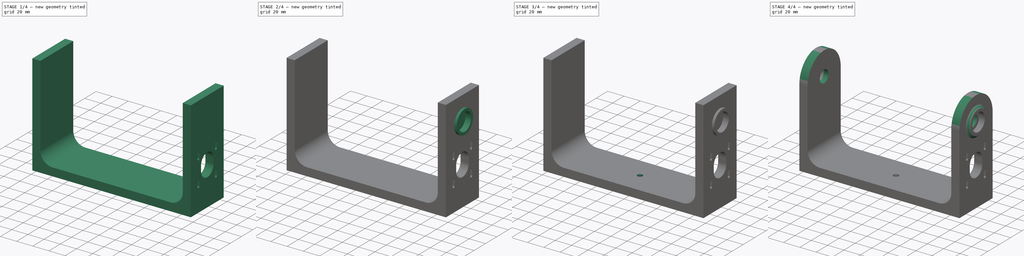
[diagram: build sequence overview — one tinted view per stage of 4, left to right]
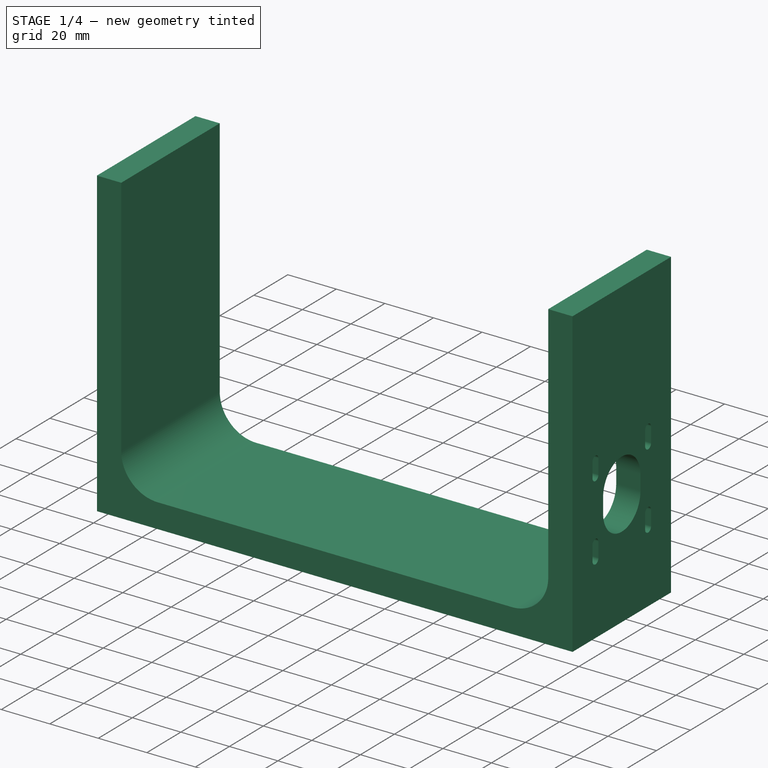
[diagram: stage 1 of 4 — iso view after this stage's code; geometry added in this stage tinted green]
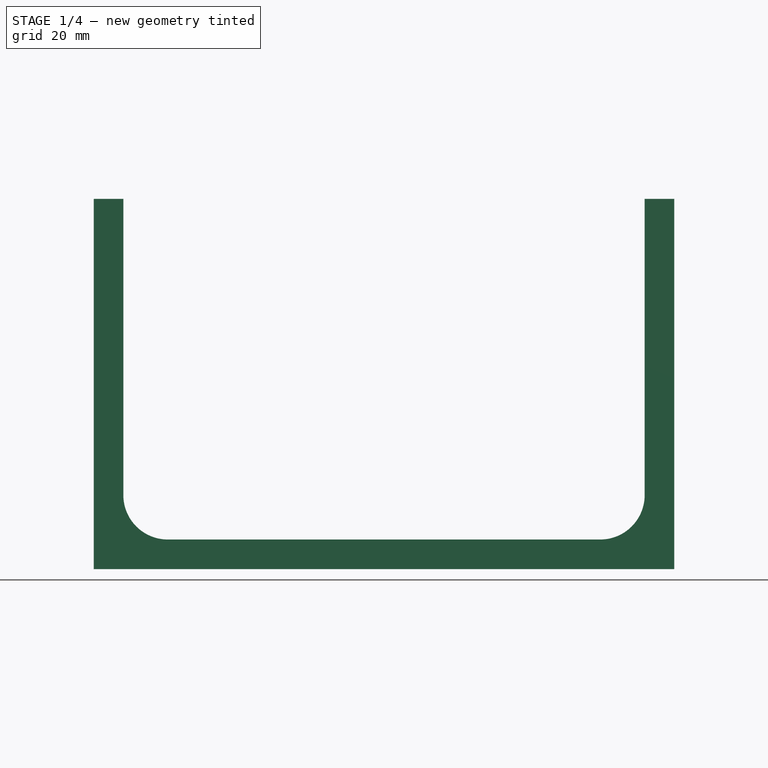
[diagram: stage 1 of 4 — front view after this stage's code; geometry added in this stage tinted green]
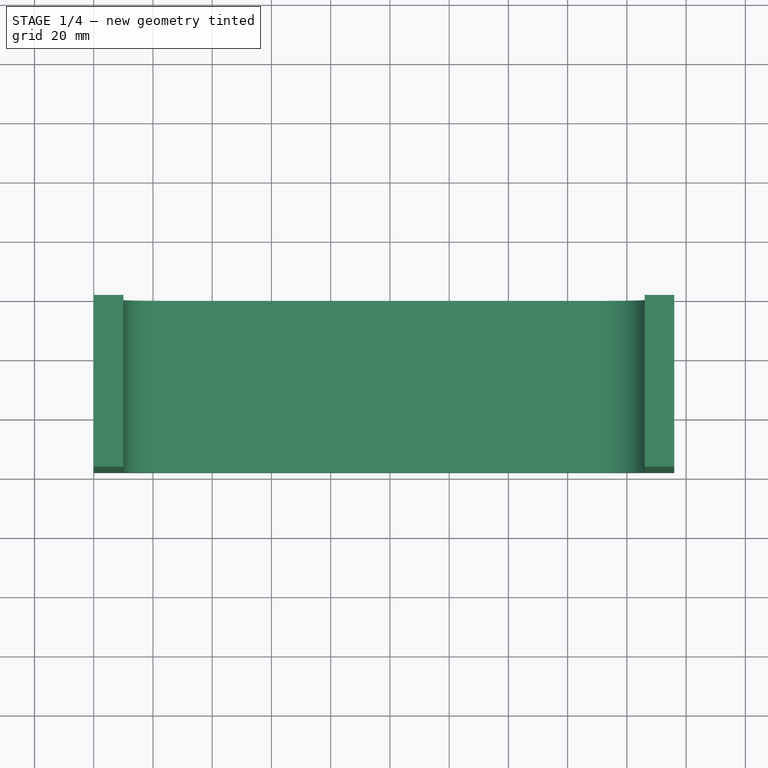
[diagram: stage 1 of 4 — top view after this stage's code; geometry added in this stage tinted green]
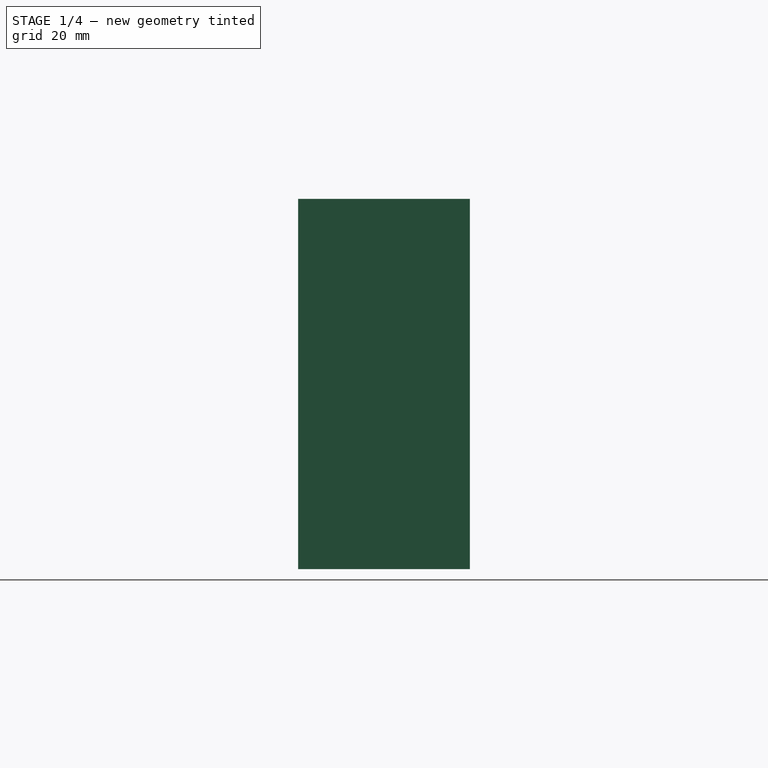
[diagram: stage 1 of 4 — right view after this stage's code; geometry added in this stage tinted green]
FCSTD DOCUMENT  (FreeCAD 0.21R33771 (Git))
Label: head_outer_bracket
License: All rights reserved
LicenseURL: http://en.wikipedia.org/wiki/All_rights_reserved
objects: Sketcher::SketchObject×8, PartDesign::Pocket×5, PartDesign::Pad×3, PartDesign::Plane×1, PartDesign::Chamfer×1, PartDesign::Body×1
note: 28 computed .brp shape members not serialized (recipe doc carries the construction recipe); baked Part::Feature solids carry a one-line shape summary decoded from their .brp

FEATURE [Sketcher::SketchObject] Sketch  label="sketch_base"
  FullyConstrained = true
  MapMode = 5
  Placement = pos=(0,0,0) rot=(1,0,0;1.5708rad)
  Support = -> [XZ_Plane]
  expr: Constraints[26] = .Constraints.arc_radius
  sketch-geometry (10):
    g0: LineSegment StartX=0 StartY=125 StartZ=0 EndX=0 EndY=0 EndZ=0
    g1: LineSegment StartX=0 StartY=0 StartZ=0 EndX=196 EndY=0 EndZ=0
    g2: LineSegment StartX=196 StartY=0 StartZ=0 EndX=196 EndY=125 EndZ=0
    g3: LineSegment StartX=196 StartY=125 StartZ=0 EndX=186 EndY=125 EndZ=0
    g4: LineSegment StartX=186 StartY=125 StartZ=0 EndX=186 EndY=25 EndZ=0
    g5: LineSegment StartX=171 StartY=10 StartZ=0 EndX=25 EndY=10 EndZ=0
    g6: LineSegment StartX=10 StartY=25 StartZ=0 EndX=10 EndY=125 EndZ=0
    g7: LineSegment StartX=10 StartY=125 StartZ=0 EndX=0 EndY=125 EndZ=0
    g8: ArcOfCircle CenterX=25 CenterY=25 CenterZ=0 NormalX=0 NormalY=0 NormalZ=1 AngleXU=0 Radius=15 StartAngle=3.14159 EndAngle=4.71239
    g9: ArcOfCircle CenterX=171 CenterY=25 CenterZ=0 NormalX=0 NormalY=0 NormalZ=1 AngleXU=0 Radius=15 StartAngle=4.71239 EndAngle=6.28319
  constraints (29):
    c: PointOnObject(g0,g-2)
    c: Coincident(g0,g-1)
    c: Coincident(g0,g1)
    c: PointOnObject(g1,g-1)
    c: Coincident(g1,g2)
    c: Vertical(g2)
    c: Coincident(g2,g3)
    c: Horizontal(g3)
    c: Coincident(g3,g4)
    c: Vertical(g4)
    c: Horizontal(g5)
    c: Vertical(g6)
    c: Coincident(g6,g7)
    c: Coincident(g7,g0)
    c: Horizontal(g7)
    c: Equal(g7,g3)
    c: DistanceX(g7,g7) = 10
    c: DistanceX(g1,g1) = 196  'outer_width'
    c: DistanceY(g0,g0) = 125  'height'
    c: Equal(g0,g2)
    c: Tangent(g6,g8) = 1.5708
    c: Tangent(g5,g8) = 1.5708
    c: DistanceY(g0,g5) = 10
    c: Tangent(g4,g9) = 1.5708
    c: Tangent(g5,g9) = 1.5708
    c: DistanceY(g5,g8) = 15  'arc_radius'
    c: DistanceY(g5,g9) = 15
    c: DistanceX(g3,g3) = 10
    c: DistanceX(g6,g3) = 176
FEATURE [PartDesign::Pad] Pad  label="pad_base"
  Direction = (0,-1,-2e-16)
  Length = 58
  Length2 = 10
  Placement = pos=(0,0,0) rot=(1,0,0;1.5708rad)
  Profile = -> Sketch
  ReferenceAxis = -> Sketch [N_Axis]
  Refine = true
  Type = 0
FEATURE [PartDesign::Plane] DatumPlane  label="plan_outer_right"
  AttachmentOffset = pos=(0,0,196) rot=(0,0,1;0rad)
  Length = 105.316
  MapMode = 5
  Placement = pos=(196,-4.35e-14,4.35e-14) rot=(0.57735,0.57735,0.57735;2.0944rad)
  ResizeMode = 0
  Support = -> [YZ_Plane]
  Width = 172.316
  expr: .AttachmentOffset.Base.z = Sketch.Constraints.outer_width
FEATURE [Sketcher::SketchObject] Sketch001  label="sketch_motor"
  FullyConstrained = true
  MapMode = 5
  Placement = pos=(196,-4.35e-14,4.35e-14) rot=(0.57735,0.57735,0.57735;2.0944rad)
  Support = -> [DatumPlane]
  expr: Constraints[100] = .Constraints.motor_margin
  expr: Constraints[101] = .Constraints.motor_margin
  expr: Constraints[130] = .Constraints.motor_margin
  expr: Constraints[132] = .Constraints.motor_margin
  expr: Constraints[162] = .Constraints.motor_margin
  expr: Constraints[163] = .Constraints.motor_margin
  expr: Constraints[176] = <<pad_base>>.Length / 2
  expr: Constraints[177] = <<sketch_base>>.Constraints.height
  expr: Constraints[18] = .Constraints.motor_margin
  expr: Constraints[65] = .Constraints.motor_margin
  expr: Constraints[66] = .Constraints.motor_margin
  sketch-geometry (66):
    g0: LineSegment StartX=-29 StartY=96 StartZ=0 EndX=-29 EndY=125 EndZ=0
    g1: LineSegment StartX=-29 StartY=96 StartZ=0 EndX=0 EndY=96 EndZ=0
    g2: LineSegment StartX=-40 StartY=47.7 StartZ=0 EndX=-18 EndY=47.7 EndZ=0
    g3: LineSegment StartX=-40 StartY=47.7 StartZ=0 EndX=-40 EndY=44.7 EndZ=0
    g4: LineSegment StartX=-18 StartY=47.7 StartZ=0 EndX=-18 EndY=44.7 EndZ=0
    g5: LineSegment StartX=-40 StartY=44.7 StartZ=0 EndX=-18 EndY=44.7 EndZ=0
    g6: LineSegment StartX=-18 StartY=47.7 StartZ=0 EndX=-18 EndY=50.7 EndZ=0
    g7: LineSegment StartX=-40 StartY=47.7 StartZ=0 EndX=-40 EndY=50.7 EndZ=0
    g8: LineSegment StartX=-40 StartY=50.7 StartZ=0 EndX=-18 EndY=50.7 EndZ=0
    g9: LineSegment StartX=-29 StartY=96 StartZ=0 EndX=-29 EndY=50.7 EndZ=0
    g10: LineSegment StartX=-29 StartY=50.7 StartZ=0 EndX=-29 EndY=47.7 EndZ=0
    g11: LineSegment StartX=-29 StartY=47.7 StartZ=0 EndX=-29 EndY=44.7 EndZ=0
    g12: ArcOfCircle CenterX=-29 CenterY=44.7 CenterZ=0 NormalX=0 NormalY=0 NormalZ=1 AngleXU=0 Radius=11 StartAngle=3.14159 EndAngle=6.28319
    g13: ArcOfCircle CenterX=-29 CenterY=50.7 CenterZ=0 NormalX=0 NormalY=0 NormalZ=1 AngleXU=0 Radius=11 StartAngle=-2.709e-13 EndAngle=3.14159
    g14: LineSegment StartX=-44.5 StartY=63.2 StartZ=0 EndX=-13.5 EndY=63.2 EndZ=0
    g15: LineSegment StartX=-13.5 StartY=63.2 StartZ=0 EndX=-13.5 EndY=32.2 EndZ=0
    g16: LineSegment StartX=-13.5 StartY=32.2 StartZ=0 EndX=-44.5 EndY=32.2 EndZ=0
    g17: LineSegment StartX=-44.5 StartY=32.2 StartZ=0 EndX=-44.5 EndY=63.2 EndZ=0
    g18: GeomPoint X=-29 Y=47.7 Z=0
    g19: LineSegment StartX=-44.5 StartY=60.2 StartZ=0 EndX=-42.75 EndY=60.2 EndZ=0
    g20: LineSegment StartX=-42.75 StartY=60.2 StartZ=0 EndX=-42.75 EndY=63.2 EndZ=0
    g21: LineSegment StartX=-42.75 StartY=63.2 StartZ=0 EndX=-42.75 EndY=66.2 EndZ=0
    g22: LineSegment StartX=-42.75 StartY=66.2 StartZ=0 EndX=-46.25 EndY=66.2 EndZ=0
    g23: LineSegment StartX=-46.25 StartY=66.2 StartZ=0 EndX=-46.25 EndY=63.2 EndZ=0
    g24: LineSegment StartX=-44.5 StartY=63.2 StartZ=0 EndX=-46.25 EndY=63.2 EndZ=0
    g25: LineSegment StartX=-46.25 StartY=63.2 StartZ=0 EndX=-46.25 EndY=60.2 EndZ=0
    g26: LineSegment StartX=-46.25 StartY=60.2 StartZ=0 EndX=-44.5 EndY=60.2 EndZ=0
    g27: LineSegment StartX=-44.5 StartY=63.2 StartZ=0 EndX=-44.5 EndY=66.2 EndZ=0
    g28: ArcOfCircle CenterX=-44.5 CenterY=66.2 CenterZ=0 NormalX=0 NormalY=0 NormalZ=1 AngleXU=0 Radius=1.75 StartAngle=5.6e-15 EndAngle=3.14159
    g29: ArcOfCircle CenterX=-44.5 CenterY=60.2 CenterZ=0 NormalX=0 NormalY=0 NormalZ=1 AngleXU=0 Radius=1.75 StartAngle=3.14159 EndAngle=6.28319
    g30: LineSegment StartX=-13.5 StartY=63.2 StartZ=0 EndX=-13.5 EndY=66.2 EndZ=0
    g31: LineSegment StartX=-13.5 StartY=63.2 StartZ=0 EndX=-11.75 EndY=63.2 EndZ=0
    g32: LineSegment StartX=-13.5 StartY=60.2 StartZ=0 EndX=-11.75 EndY=60.2 EndZ=0
    g33: LineSegment StartX=-11.75 StartY=63.2 StartZ=0 EndX=-11.75 EndY=60.2 EndZ=0
    g34: LineSegment StartX=-11.75 StartY=63.2 StartZ=0 EndX=-11.75 EndY=66.2 EndZ=0
    g35: LineSegment StartX=-11.75 StartY=66.2 StartZ=0 EndX=-13.5 EndY=66.2 EndZ=0
    g36: LineSegment StartX=-13.5 StartY=66.2 StartZ=0 EndX=-15.25 EndY=66.2 EndZ=0
    g37: LineSegment StartX=-15.25 StartY=66.2 StartZ=0 EndX=-15.25 EndY=63.2 EndZ=0
    g38: LineSegment StartX=-15.25 StartY=63.2 StartZ=0 EndX=-15.25 EndY=60.2 EndZ=0
    g39: LineSegment StartX=-15.25 StartY=60.2 StartZ=0 EndX=-13.5 EndY=60.2 EndZ=0
    g40: ArcOfCircle CenterX=-13.5 CenterY=60.2 CenterZ=0 NormalX=0 NormalY=0 NormalZ=1 AngleXU=0 Radius=1.75 StartAngle=3.14159 EndAngle=6.28319
    g41: ArcOfCircle CenterX=-13.5 CenterY=66.2 CenterZ=0 NormalX=0 NormalY=0 NormalZ=1 AngleXU=0 Radius=1.75 StartAngle=0 EndAngle=3.14159
    g42: LineSegment StartX=-44.5 StartY=35.2 StartZ=0 EndX=-46.25 EndY=35.2 EndZ=0
    g43: LineSegment StartX=-46.25 StartY=35.2 StartZ=0 EndX=-46.25 EndY=32.2 EndZ=0
    g44: LineSegment StartX=-46.25 StartY=32.2 StartZ=0 EndX=-44.5 EndY=32.2 EndZ=0
    g45: LineSegment StartX=-44.5 StartY=35.2 StartZ=0 EndX=-42.75 EndY=35.2 EndZ=0
    g46: LineSegment StartX=-42.75 StartY=35.2 StartZ=0 EndX=-42.75 EndY=32.2 EndZ=0
    g47: LineSegment StartX=-42.75 StartY=32.2 StartZ=0 EndX=-42.75 EndY=29.2 EndZ=0
    g48: LineSegment StartX=-44.5 StartY=32.2 StartZ=0 EndX=-44.5 EndY=29.2 EndZ=0
    g49: LineSegment StartX=-44.5 StartY=29.2 StartZ=0 EndX=-42.75 EndY=29.2 EndZ=0
    g50: LineSegment StartX=-44.5 StartY=29.2 StartZ=0 EndX=-46.25 EndY=29.2 EndZ=0
    g51: LineSegment StartX=-46.25 StartY=29.2 StartZ=0 EndX=-46.25 EndY=32.2 EndZ=0
    g52: ArcOfCircle CenterX=-44.5 CenterY=35.2 CenterZ=0 NormalX=0 NormalY=0 NormalZ=1 AngleXU=0 Radius=1.75 StartAngle=3e-16 EndAngle=3.14159
    g53: ArcOfCircle CenterX=-44.5 CenterY=29.2 CenterZ=0 NormalX=0 NormalY=0 NormalZ=1 AngleXU=0 Radius=1.75 StartAngle=3.14159 EndAngle=6.28318
    g54: LineSegment StartX=-13.5 StartY=35.2 StartZ=0 EndX=-11.75 EndY=35.2 EndZ=0
    g55: LineSegment StartX=-11.75 StartY=35.2 StartZ=0 EndX=-11.75 EndY=32.2 EndZ=0
    g56: LineSegment StartX=-13.5 StartY=32.2 StartZ=0 EndX=-11.75 EndY=32.2 EndZ=0
    g57: LineSegment StartX=-11.75 StartY=32.2 StartZ=0 EndX=-11.75 EndY=29.2 EndZ=0
    g58: LineSegment StartX=-11.75 StartY=29.2 StartZ=0 EndX=-13.5 EndY=29.2 EndZ=0
    g59: LineSegment StartX=-13.5 StartY=29.2 StartZ=0 EndX=-13.5 EndY=32.2 EndZ=0
    g60: LineSegment StartX=-15.25 StartY=32.2 StartZ=0 EndX=-15.25 EndY=35.2 EndZ=0
    g61: LineSegment StartX=-15.25 StartY=35.2 StartZ=0 EndX=-13.5 EndY=35.2 EndZ=0
    g62: LineSegment StartX=-13.5 StartY=29.2 StartZ=0 EndX=-15.25 EndY=29.2 EndZ=0
    g63: LineSegment StartX=-15.25 StartY=29.2 StartZ=0 EndX=-15.25 EndY=32.2 EndZ=0
    g64: ArcOfCircle CenterX=-13.5 CenterY=29.2 CenterZ=0 NormalX=0 NormalY=0 NormalZ=1 AngleXU=0 Radius=1.75 StartAngle=3.14159 EndAngle=6.28319
    g65: ArcOfCircle CenterX=-13.5 CenterY=35.2 CenterZ=0 NormalX=0 NormalY=0 NormalZ=1 AngleXU=0 Radius=1.75 StartAngle=-9e-16 EndAngle=3.14159
  constraints (178):
    c: Vertical(g0)
    c: PointOnObject(g1,g-2)
    c: Horizontal(g1)
    c: Horizontal(g2)
    c: Coincident(g3,g2)
    c: Vertical(g3)
    c: Coincident(g4,g2)
    c: Vertical(g4)
    c: Coincident(g5,g3)
    c: Coincident(g5,g4)
    c: Horizontal(g5)
    c: Coincident(g6,g4)
    c: Vertical(g6)
    c: Coincident(g7,g3)
    c: Vertical(g7)
    c: Coincident(g8,g7)
    c: Coincident(g8,g6)
    c: Horizontal(g8)
    c: DistanceY(g4,g4) = 3
    c: DistanceY(g6,g6) = 3  'motor_margin'
    c: PointOnObject(g9,g8)
    c: Vertical(g9)
    c: Coincident(g10,g9)
    c: PointOnObject(g10,g2)
    c: Vertical(g10)
    c: Coincident(g11,g10)
    c: PointOnObject(g11,g5)
    c: DistanceX(g3,g4) = 22
    c: Coincident(g12,g11)
    c: Coincident(g12,g3)
    c: Coincident(g12,g4)
    c: Coincident(g13,g9)
    c: Coincident(g13,g7)
    c: Coincident(g13,g6)
    c: Coincident(g14,g15)
    c: Coincident(g15,g16)
    c: Coincident(g16,g17)
    c: Coincident(g17,g14)
    c: Horizontal(g14)
    c: Horizontal(g16)
    c: Vertical(g15)
    c: Vertical(g17)
    c: Equal(g14,g17)
    c: DistanceY(g17,g17) = 31
    c: Symmetric(g16,g14,g18)
    c: Coincident(g18,g10)
    c: PointOnObject(g19,g17)
    c: Horizontal(g19)
    c: Coincident(g20,g19)
    c: PointOnObject(g20,g14)
    c: Vertical(g20)
    c: Coincident(g21,g20)
    c: Vertical(g21)
    c: Coincident(g22,g21)
    c: Horizontal(g22)
    c: Coincident(g23,g22)
    c: Vertical(g23)
    c: Coincident(g24,g14)
    c: Coincident(g24,g23)
    c: Horizontal(g24)
    c: Coincident(g25,g23)
    c: Vertical(g25)
    c: Coincident(g26,g25)
    c: Coincident(g26,g19)
    c: Horizontal(g26)
    c: DistanceY(g21,g21) = 3
    c: DistanceY(g20,g20) = 3
    c: DistanceX(g22,g22) = 3.5
    c: Coincident(g27,g14)
    c: PointOnObject(g27,g22)
    c: Coincident(g28,g27)
    c: Coincident(g28,g23)
    c: Coincident(g28,g21)
    c: Coincident(g29,g19)
    c: Coincident(g29,g25)
    c: Coincident(g29,g20)
    c: Coincident(g30,g14)
    c: Vertical(g30)
    c: Coincident(g31,g14)
    c: Horizontal(g31)
    c: PointOnObject(g32,g15)
    c: Horizontal(g32)
    c: Coincident(g33,g31)
    c: Coincident(g33,g32)
    c: Vertical(g33)
    c: Coincident(g34,g31)
    c: Coincident(g35,g34)
    c: Coincident(g35,g30)
    c: Coincident(g36,g30)
    c: Horizontal(g36)
    c: Coincident(g37,g36)
    c: PointOnObject(g37,g14)
    c: Vertical(g37)
    c: Coincident(g38,g37)
    c: Vertical(g38)
    c: Coincident(g39,g38)
    c: Coincident(g39,g32)
    c: Horizontal(g39)
    c: Horizontal(g35)
    c: DistanceX(g36,g34) = 3.5
    c: DistanceY(g34,g34) = 3
    c: DistanceY(g33,g33) = 3
    c: Coincident(g40,g32)
    c: Coincident(g40,g38)
    c: Coincident(g40,g32)
    c: Coincident(g41,g30)
    c: Coincident(g41,g36)
    c: Coincident(g41,g34)
    c: PointOnObject(g42,g17)
    c: Horizontal(g42)
    c: Vertical(g43)
    c: Coincident(g44,g43)
    c: Coincident(g44,g16)
    c: Horizontal(g44)
    c: Coincident(g45,g42)
    c: Horizontal(g45)
    c: Coincident(g46,g45)
    c: PointOnObject(g46,g16)
    c: Vertical(g46)
    c: Coincident(g47,g46)
    c: Vertical(g47)
    c: Coincident(g48,g16)
    c: Vertical(g48)
    c: Coincident(g49,g48)
    c: Coincident(g49,g47)
    c: Coincident(g50,g48)
    c: Horizontal(g50)
    c: Coincident(g51,g50)
    c: Coincident(g51,g43)
    c: Vertical(g51)
    c: DistanceY(g46,g46) = 3
    c: Coincident(g43,g42)
    c: DistanceY(g47,g47) = 3
    c: Coincident(g52,g42)
    c: Coincident(g52,g42)
    c: Coincident(g52,g45)
    c: Coincident(g53,g48)
    c: Coincident(g53,g50)
    c: Coincident(g53,g47)
    c: DistanceX(g53,g53) = 3.5
    c: PointOnObject(g54,g15)
    c: Horizontal(g54)
    c: Coincident(g55,g54)
    c: Vertical(g55)
    c: Coincident(g56,g15)
    c: Coincident(g56,g55)
    c: Horizontal(g56)
    c: Coincident(g57,g55)
    c: Vertical(g57)
    c: Coincident(g58,g57)
    c: Horizontal(g58)
    c: Coincident(g59,g15)
    c: Vertical(g59)
    c: PointOnObject(g60,g16)
    c: Vertical(g60)
    c: Coincident(g61,g60)
    c: Coincident(g61,g54)
    c: Coincident(g62,g58)
    c: Horizontal(g62)
    c: Coincident(g63,g62)
    c: Coincident(g63,g60)
    c: Horizontal(g61)
    c: DistanceY(g55,g55) = 3
    c: DistanceY(g57,g57) = 3
    c: Coincident(g59,g58)
    c: DistanceX(g62,g57) = 3.5
    c: Coincident(g64,g58)
    c: Coincident(g64,g62)
    c: Coincident(g64,g57)
    c: Coincident(g65,g54)
    c: Coincident(g65,g60)
    c: Coincident(g65,g54)
    c: Equal(g0,g1)
    c: DistanceY(g10,g0) = 48.3
    c: Coincident(g0,g9)
    c: Coincident(g1,g0)
    c: DistanceX(g1,g1) = 29
    c: DistanceY(g-1,g0) = 125
FEATURE [PartDesign::Pocket] Pocket  label="pocket_motor"
  BaseFeature = -> Pad
  Direction = (-1,1e-16,-1e-16)
  Length = 5
  Length2 = 5
  Placement = pos=(0,0,0) rot=(1,0,0;1.5708rad)
  Profile = -> Sketch001
  ReferenceAxis = -> Sketch001 [N_Axis]
  Refine = true
  Type = 2
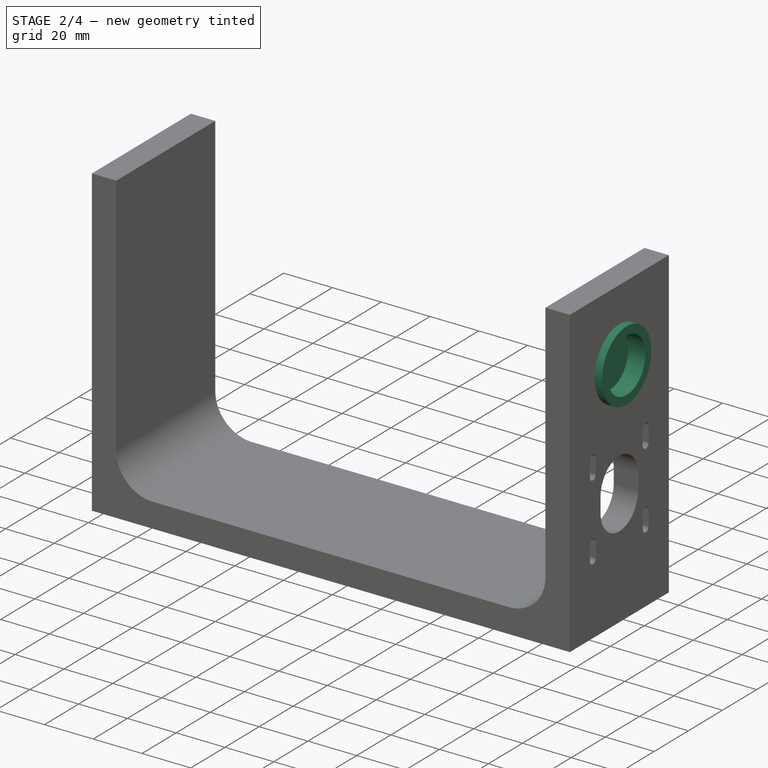
[diagram: stage 2 of 4 — iso view after this stage's code; geometry added in this stage tinted green]
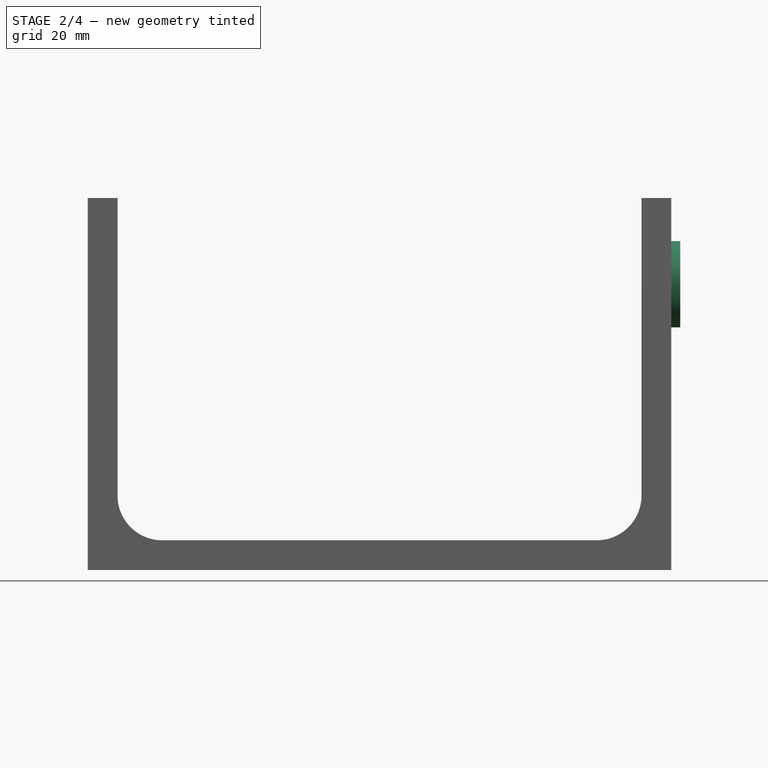
[diagram: stage 2 of 4 — front view after this stage's code; geometry added in this stage tinted green]
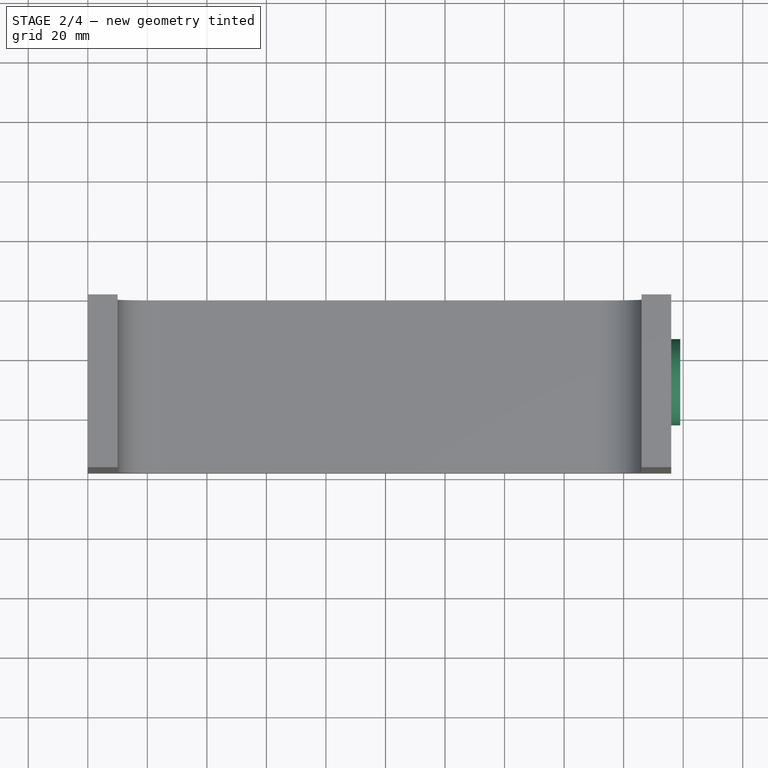
[diagram: stage 2 of 4 — top view after this stage's code; geometry added in this stage tinted green]
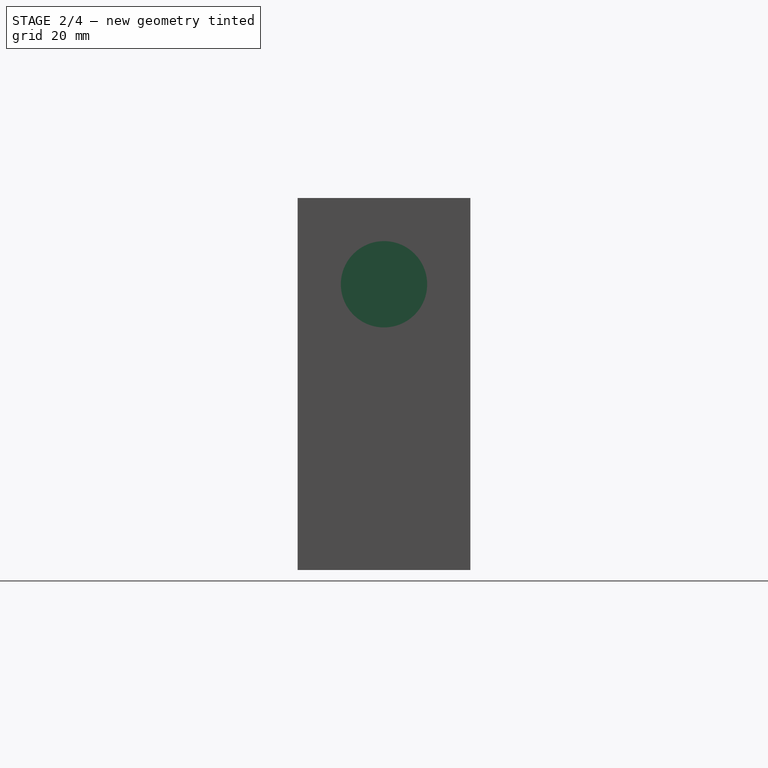
[diagram: stage 2 of 4 — right view after this stage's code; geometry added in this stage tinted green]
FEATURE [Sketcher::SketchObject] Sketch002  label="sketch_bearing_right_inner"
  FullyConstrained = true
  MapMode = 5
  Placement = pos=(196,-4.35e-14,4.35e-14) rot=(0.57735,0.57735,0.57735;2.0944rad)
  Support = -> [DatumPlane]
  expr: Constraints[11] = <<sketch_base>>.Constraints.height
  expr: Constraints[12] = <<pad_base>>.Length / 2
  sketch-geometry (5):
    g0: GeomPoint X=-29 Y=125 Z=0
    g1: LineSegment StartX=-29 StartY=125 StartZ=0 EndX=-29 EndY=96 EndZ=0
    g2: LineSegment StartX=-29 StartY=96 StartZ=0 EndX=0 EndY=96 EndZ=0
    g3: Circle CenterX=-29 CenterY=96 CenterZ=0 NormalX=0 NormalY=0 NormalZ=1 AngleXU=0 Radius=11
    g4: LineSegment StartX=-29 StartY=125 StartZ=0 EndX=0 EndY=125 EndZ=0
  constraints (13):
    c: Coincident(g1,g0)
    c: Vertical(g1)
    c: Coincident(g2,g1)
    c: PointOnObject(g2,g-2)
    c: Horizontal(g2)
    c: Equal(g1,g2)
    c: Diameter(g3) = 22
    c: Coincident(g3,g1)
    c: Coincident(g4,g0)
    c: PointOnObject(g4,g-2)
    c: Horizontal(g4)
    c: DistanceY(g-1,g4) = 125
    c: DistanceX(g2,g2) = 29
FEATURE [PartDesign::Pocket] Pocket001  label="pocket_bearing_right_inner"
  BaseFeature = -> Pocket
  Direction = (-1,1e-16,-1e-16)
  Length = 4
  Length2 = 5
  Placement = pos=(0,0,0) rot=(1,0,0;1.5708rad)
  Profile = -> Sketch002
  ReferenceAxis = -> Sketch002 [N_Axis]
  Refine = true
  Type = 0
FEATURE [Sketcher::SketchObject] Sketch003  label="sketch_bearing_right_outer"
  FullyConstrained = true
  MapMode = 5
  Placement = pos=(196,-4.35e-14,4.35e-14) rot=(0.57735,0.57735,0.57735;2.0944rad)
  Support = -> [DatumPlane]
  expr: Constraints[13] = <<pad_base>>.Length / 2
  expr: Constraints[14] = <<sketch_base>>.Constraints.height
  sketch-geometry (6):
    g0: GeomPoint X=-29 Y=125 Z=0
    g1: LineSegment StartX=-29 StartY=125 StartZ=0 EndX=-29 EndY=96 EndZ=0
    g2: LineSegment StartX=-29 StartY=96 StartZ=0 EndX=0 EndY=96 EndZ=0
    g3: Circle CenterX=-29 CenterY=96 CenterZ=0 NormalX=0 NormalY=0 NormalZ=1 AngleXU=0 Radius=11
    g4: Circle CenterX=-29 CenterY=96 CenterZ=0 NormalX=0 NormalY=0 NormalZ=1 AngleXU=0 Radius=14.5
    g5: LineSegment StartX=-29 StartY=125 StartZ=0 EndX=0 EndY=125 EndZ=0
  constraints (15):
    c: Coincident(g1,g0)
    c: Vertical(g1)
    c: Coincident(g2,g1)
    c: PointOnObject(g2,g-2)
    c: Horizontal(g2)
    c: Equal(g1,g2)
    c: Coincident(g3,g1)
    c: Diameter(g3) = 22
    c: Coincident(g4,g3)
    c: Diameter(g4) = 29
    c: Coincident(g5,g0)
    c: PointOnObject(g5,g-2)
    c: Horizontal(g5)
    c: DistanceX(g2,g2) = 29
    c: DistanceY(g-1,g5) = 125
FEATURE [PartDesign::Pad] Pad001  label="pad_bearing_right_outer"
  BaseFeature = -> Pocket001
  Direction = (1,-1e-16,1e-16)
  Length = 3
  Length2 = 10
  Placement = pos=(0,0,0) rot=(1,0,0;1.5708rad)
  Profile = -> Sketch003
  ReferenceAxis = -> Sketch003 [N_Axis]
  Refine = true
  Type = 0
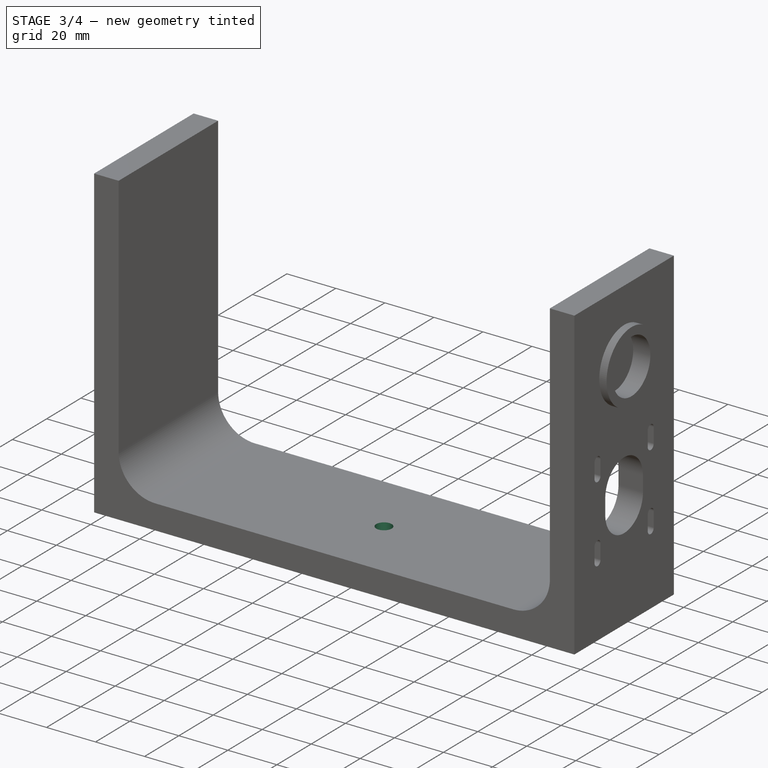
[diagram: stage 3 of 4 — iso view after this stage's code; geometry added in this stage tinted green]
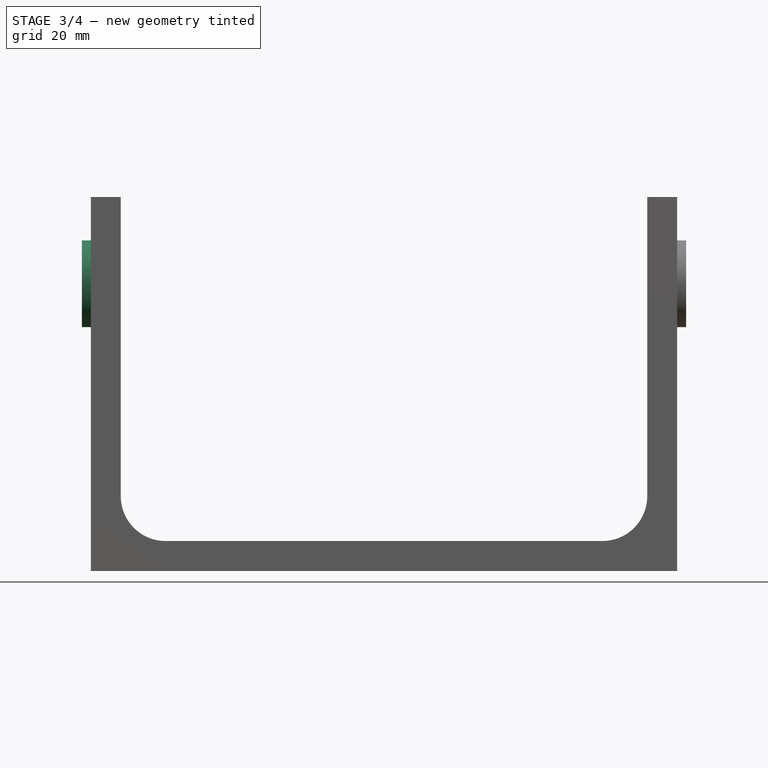
[diagram: stage 3 of 4 — front view after this stage's code; geometry added in this stage tinted green]
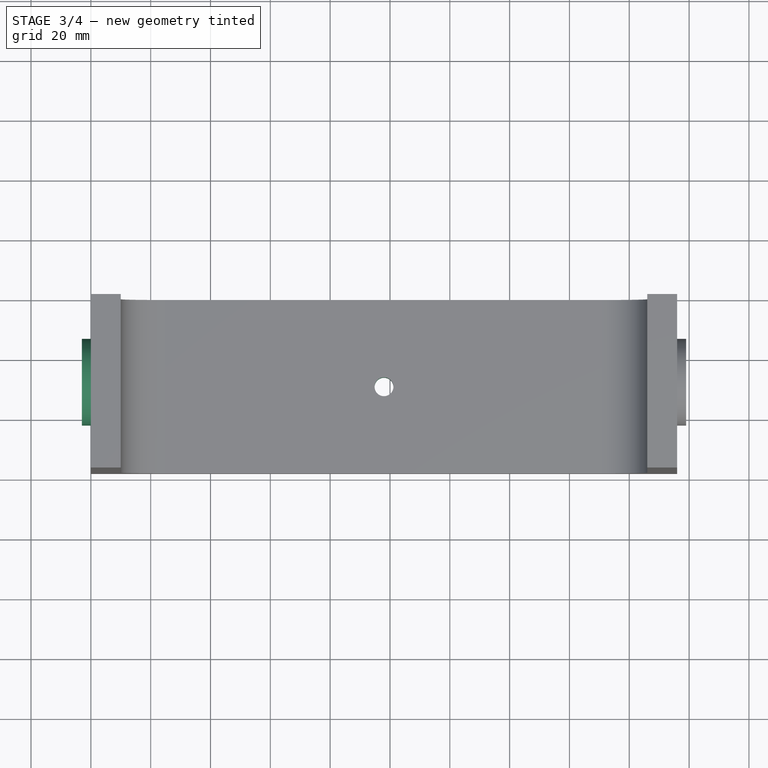
[diagram: stage 3 of 4 — top view after this stage's code; geometry added in this stage tinted green]
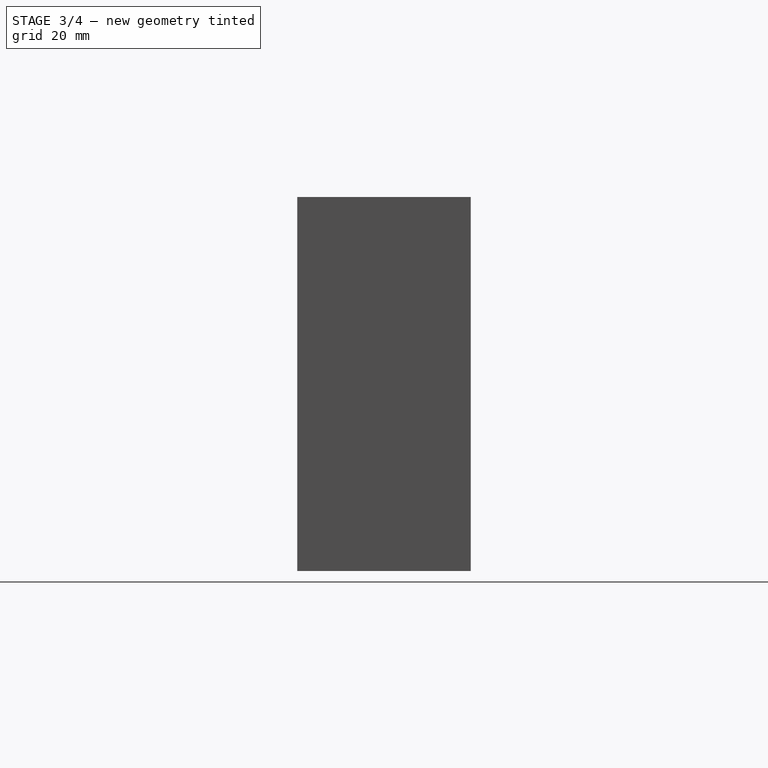
[diagram: stage 3 of 4 — right view after this stage's code; geometry added in this stage tinted green]
FEATURE [Sketcher::SketchObject] Sketch004  label="sketch_bearing_left_inner"
  FullyConstrained = true
  MapMode = 5
  Placement = pos=(0,0,0) rot=(0.57735,0.57735,0.57735;2.0944rad)
  Support = -> [YZ_Plane]
  expr: Constraints[13] = <<pad_base>>.Length / 2
  expr: Constraints[14] = <<sketch_base>>.Constraints.height
  sketch-geometry (6):
    g0: Circle CenterX=-29 CenterY=96 CenterZ=0 NormalX=0 NormalY=0 NormalZ=1 AngleXU=0 Radius=11
    g1: GeomPoint X=-29 Y=125 Z=0
    g2: LineSegment StartX=-29 StartY=125 StartZ=0 EndX=-29 EndY=96 EndZ=0
    g3: LineSegment StartX=-29 StartY=96 StartZ=0 EndX=0 EndY=96 EndZ=0
    g4: LineSegment StartX=-29 StartY=125 StartZ=0 EndX=0 EndY=125 EndZ=0
    g5: LineSegment StartX=0 StartY=125 StartZ=0 EndX=0 EndY=96 EndZ=0
  constraints (15):
    c: Diameter(g0) = 22
    c: Coincident(g2,g1)
    c: Vertical(g2)
    c: Coincident(g3,g2)
    c: PointOnObject(g3,g-2)
    c: Horizontal(g3)
    c: Equal(g2,g3)
    c: Coincident(g2,g0)
    c: Coincident(g4,g1)
    c: PointOnObject(g4,g-2)
    c: Horizontal(g4)
    c: Coincident(g5,g4)
    c: Coincident(g5,g3)
    c: DistanceX(g3,g3) = 29
    c: DistanceY(g-1,g4) = 125
FEATURE [PartDesign::Pocket] Pocket002  label="pocket_bearing_left_inner"
  BaseFeature = -> Pad001
  Direction = (-1,2e-16,-3e-16)
  Length = 4
  Length2 = 5
  Placement = pos=(0,0,0) rot=(1,0,0;1.5708rad)
  Profile = -> Sketch004
  ReferenceAxis = -> Sketch004 [N_Axis]
  Refine = true
  Reversed = true
  Type = 0
FEATURE [Sketcher::SketchObject] Sketch005  label="sketch_bearing_left_outer"
  FullyConstrained = true
  MapMode = 5
  Placement = pos=(0,0,0) rot=(0.57735,0.57735,0.57735;2.0944rad)
  Support = -> [YZ_Plane]
  expr: Constraints[14] = <<pad_base>>.Length / 2
  expr: Constraints[15] = <<sketch_base>>.Constraints.height
  sketch-geometry (7):
    g0: GeomPoint X=-29 Y=96 Z=0
    g1: Circle CenterX=-29 CenterY=96 CenterZ=0 NormalX=0 NormalY=0 NormalZ=1 AngleXU=0 Radius=11
    g2: Circle CenterX=-29 CenterY=96 CenterZ=0 NormalX=0 NormalY=0 NormalZ=1 AngleXU=0 Radius=14.5
    g3: GeomPoint X=-29 Y=125 Z=0
    g4: LineSegment StartX=-29 StartY=125 StartZ=0 EndX=-29 EndY=96 EndZ=0
    g5: LineSegment StartX=-29 StartY=96 StartZ=0 EndX=0 EndY=96 EndZ=0
    g6: LineSegment StartX=-29 StartY=125 StartZ=0 EndX=0 EndY=125 EndZ=0
  constraints (16):
    c: Coincident(g1,g0)
    c: Diameter(g1) = 22
    c: Coincident(g2,g1)
    c: Diameter(g2) = 29
    c: Coincident(g4,g3)
    c: Vertical(g4)
    c: Coincident(g5,g4)
    c: PointOnObject(g5,g-2)
    c: Horizontal(g5)
    c: Equal(g4,g5)
    c: Coincident(g1,g4)
    c: Coincident(g6,g3)
    c: PointOnObject(g6,g-2)
    c: Horizontal(g6)
    c: DistanceX(g5,g5) = 29
    c: DistanceY(g-1,g6) = 125
FEATURE [PartDesign::Pad] Pad002  label="pad_bearing_left_outer"
  BaseFeature = -> Pocket002
  Direction = (1,-2e-16,3e-16)
  Length = 3
  Length2 = 10
  Placement = pos=(0,0,0) rot=(1,0,0;1.5708rad)
  Profile = -> Sketch005
  ReferenceAxis = -> Sketch005 [N_Axis]
  Refine = true
  Reversed = true
  Type = 0
FEATURE [Sketcher::SketchObject] Sketch006  label="sketch_platform_hole"
  FullyConstrained = true
  MapMode = 5
  Support = -> [XY_Plane]
  expr: Constraints[1] = <<sketch_base>>.Constraints.outer_width / 2
  expr: Constraints[2] = <<pad_base>>.Length / 2
  sketch-geometry (2):
    g0: GeomPoint X=98 Y=-29 Z=0
    g1: Circle CenterX=98 CenterY=-29 CenterZ=0 NormalX=0 NormalY=0 NormalZ=1 AngleXU=0 Radius=3.15
  constraints (4):
    c: Coincident(g1,g0)
    c: DistanceX(g-1,g1) = 98
    c: DistanceY(g1,g-1) = 29
    c: Diameter(g1) = 6.3
FEATURE [PartDesign::Pocket] Pocket003  label="pocket_platform_hole"
  BaseFeature = -> Pad002
  Direction = (0,0,-1)
  Length = 5
  Length2 = 5
  Placement = pos=(0,0,0) rot=(1,0,0;1.5708rad)
  Profile = -> Sketch006
  ReferenceAxis = -> Sketch006 [N_Axis]
  Refine = true
  Reversed = true
  Type = 2
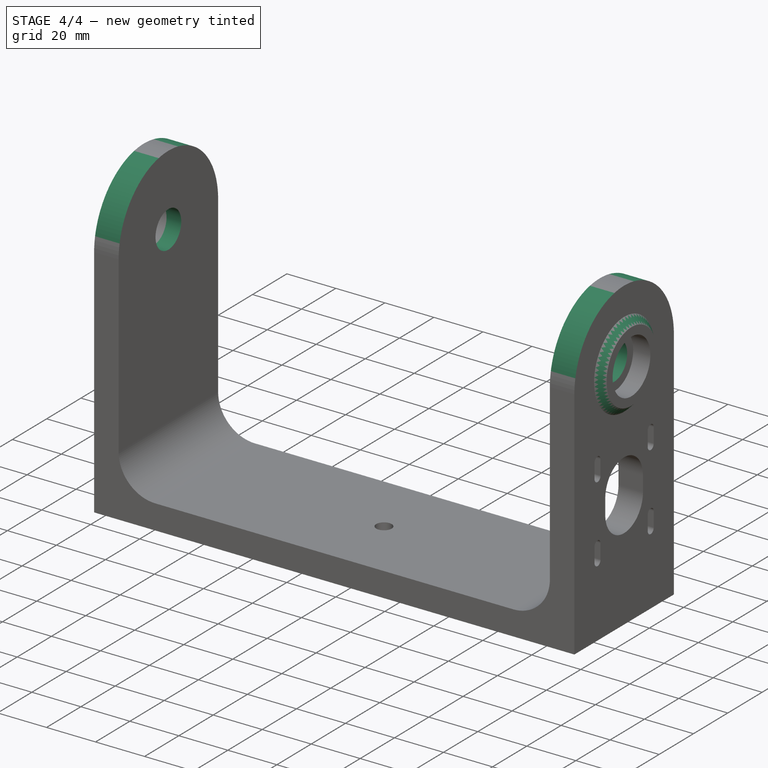
[diagram: stage 4 of 4 — iso view after this stage's code; geometry added in this stage tinted green]
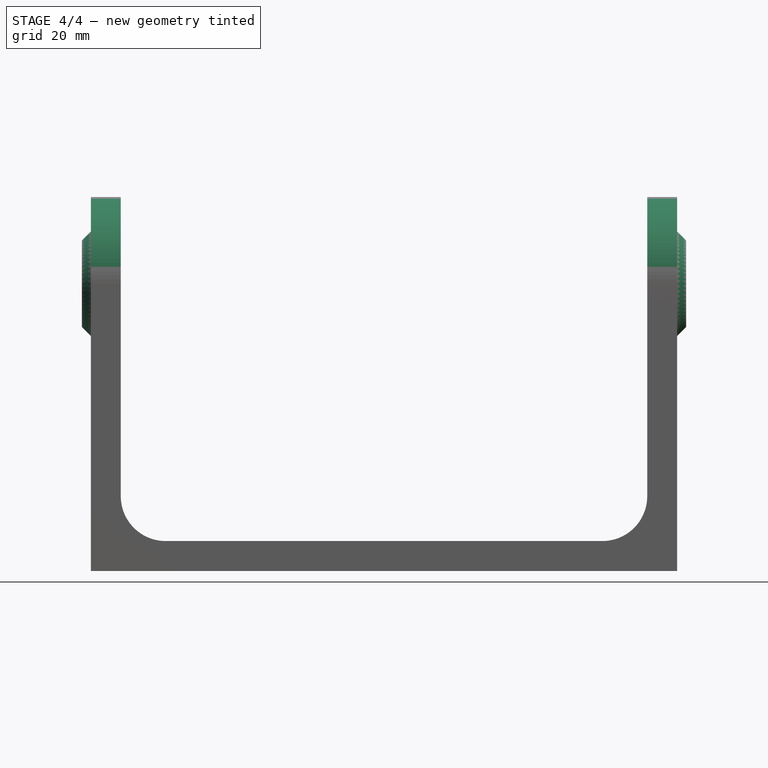
[diagram: stage 4 of 4 — front view after this stage's code; geometry added in this stage tinted green]
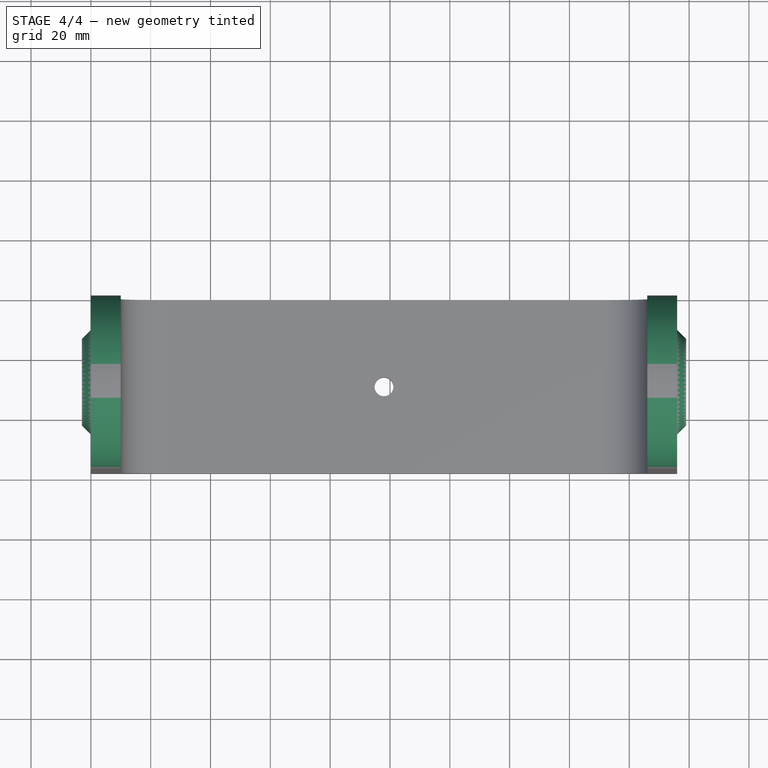
[diagram: stage 4 of 4 — top view after this stage's code; geometry added in this stage tinted green]
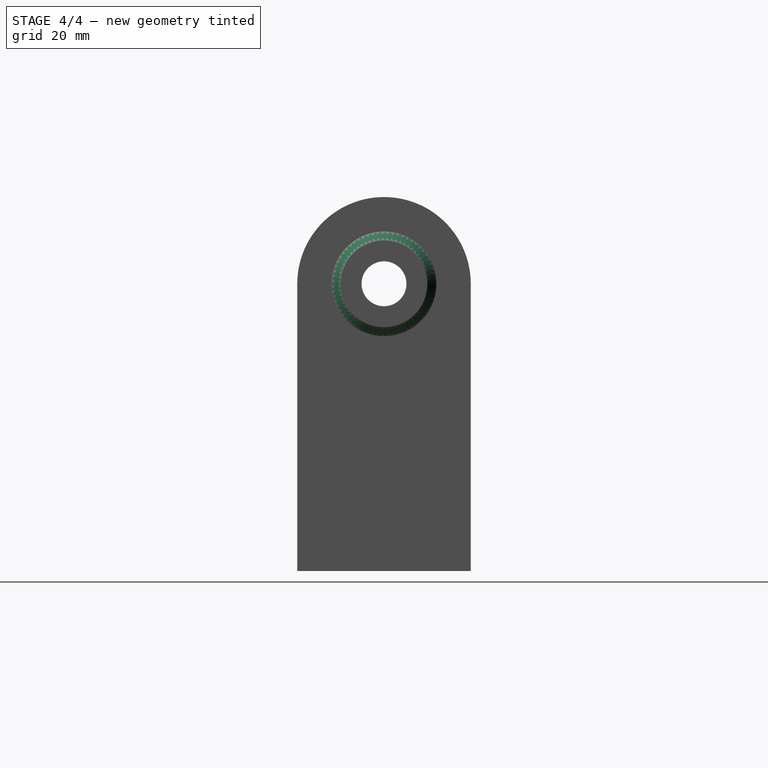
[diagram: stage 4 of 4 — right view after this stage's code; geometry added in this stage tinted green]
FEATURE [Sketcher::SketchObject] Sketch007  label="sketch_through_all"
  FullyConstrained = true
  MapMode = 5
  Placement = pos=(196,-4.35e-14,4.35e-14) rot=(0.57735,0.57735,0.57735;2.0944rad)
  Support = -> [DatumPlane]
  expr: Constraints[10] = <<pad_base>>.Length
  expr: Constraints[2] = <<sketch_base>>.Constraints.height
  sketch-geometry (11):
    g0: LineSegment StartX=0 StartY=125 StartZ=0 EndX=-58 EndY=125 EndZ=0
    g1: LineSegment StartX=-58 StartY=125 StartZ=0 EndX=-58 EndY=96 EndZ=0
    g2: LineSegment StartX=-58 StartY=96 StartZ=0 EndX=-29 EndY=96 EndZ=0
    g3: LineSegment StartX=-29 StartY=96 StartZ=0 EndX=0 EndY=96 EndZ=0
    g4: Circle CenterX=-29 CenterY=96 CenterZ=0 NormalX=0 NormalY=0 NormalZ=1 AngleXU=0 Radius=7.5
    g5: ArcOfCircle CenterX=-29 CenterY=96 CenterZ=0 NormalX=0 NormalY=0 NormalZ=1 AngleXU=0 Radius=29 StartAngle=0 EndAngle=3.14159
    g6: LineSegment StartX=-58 StartY=96 StartZ=0 EndX=-68 EndY=96 EndZ=0
    g7: LineSegment StartX=-68 StartY=96 StartZ=0 EndX=-68 EndY=136 EndZ=0
    g8: LineSegment StartX=-68 StartY=136 StartZ=0 EndX=10 EndY=136 EndZ=0
    g9: LineSegment StartX=10 StartY=136 StartZ=0 EndX=10 EndY=96 EndZ=0
    g10: LineSegment StartX=10 StartY=96 StartZ=0 EndX=0 EndY=96 EndZ=0
  constraints (31):
    c: PointOnObject(g0,g-2)
    c: Horizontal(g0)
    c: DistanceY(g-1,g0) = 125
    c: Coincident(g1,g0)
    c: Vertical(g1)
    c: Coincident(g2,g1)
    c: PointOnObject(g3,g-2)
    c: Coincident(g2,g3)
    c: Horizontal(g2)
    c: Horizontal(g3)
    c: DistanceX(g0,g0) = 58
    c: Coincident(g4,g2)
    c: Diameter(g4) = 15
    c: Equal(g2,g1)
    c: Coincident(g5,g4)
    c: Coincident(g5,g1)
    c: Coincident(g5,g3)
    c: Coincident(g6,g5)
    c: Horizontal(g6)
    c: Coincident(g7,g6)
    c: Vertical(g7)
    c: Coincident(g8,g7)
    c: Horizontal(g8)
    c: Coincident(g9,g8)
    c: Vertical(g9)
    c: Coincident(g10,g9)
    c: Coincident(g10,g5)
    c: Horizontal(g10)
    c: Equal(g6,g10)
    c: DistanceX(g6,g6) = 10
    c: DistanceY(g7,g7) = 40
FEATURE [PartDesign::Pocket] Pocket004  label="pocket_through_all"
  BaseFeature = -> Pocket003
  Direction = (-1,1e-16,-1e-16)
  Length = 5
  Length2 = 5
  Placement = pos=(0,0,0) rot=(1,0,0;1.5708rad)
  Profile = -> Sketch007
  ReferenceAxis = -> Sketch007 [N_Axis]
  Refine = true
  Type = 1
FEATURE [PartDesign::Chamfer] Chamfer  label="chamfer_bearings"
  Angle = 45
  Base = -> Pocket004 [Edge14,Edge61]
  BaseFeature = -> Pocket004
  ChamferType = 0
  FlipDirection = false
  Placement = pos=(0,0,0) rot=(1,0,0;1.5708rad)
  Refine = true
  Size = 2.99
  Size2 = 1
  SupportTransform = false
  UseAllEdges = false
FEATURE [PartDesign::Body] Body
  Group = -> [Sketch,Pad,DatumPlane,Sketch001,Pocket,Sketch002,Pocket001,Sketch003,Pad001,Sketch004,Pocket002,Sketch005,Pad002,Sketch006,Pocket003,Sketch007,Pocket004,Chamfer]
  Origin = -> Origin
  Tip = -> Chamfer
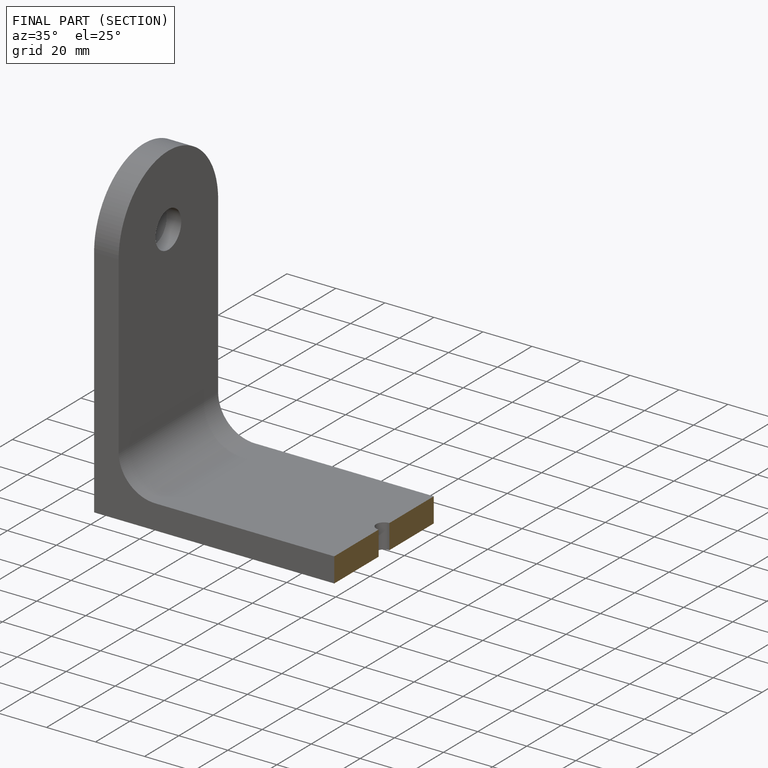
[diagram: finished part — half-section view (interior)]
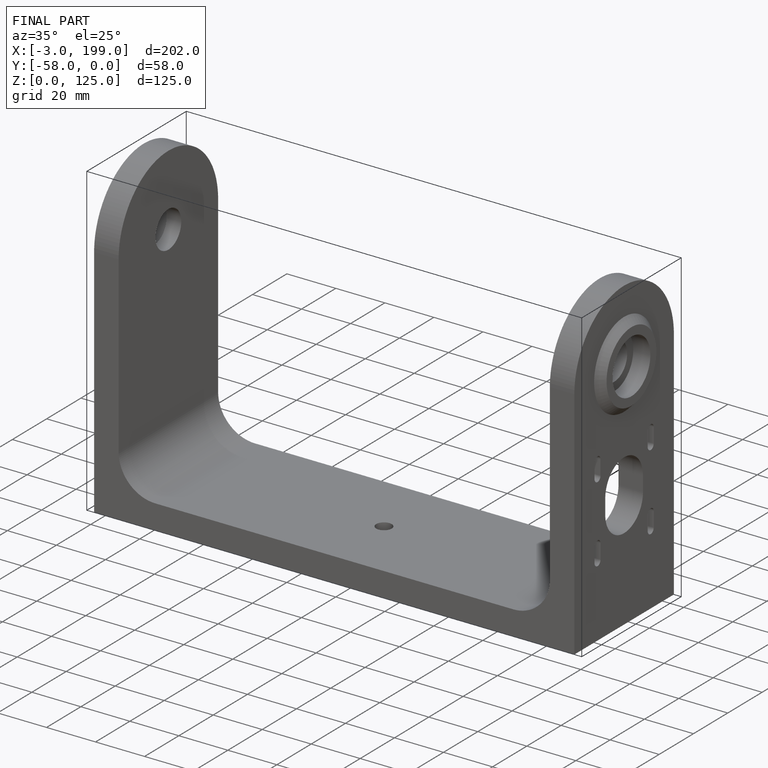
[diagram: finished part — iso view with bounding-box wireframe]
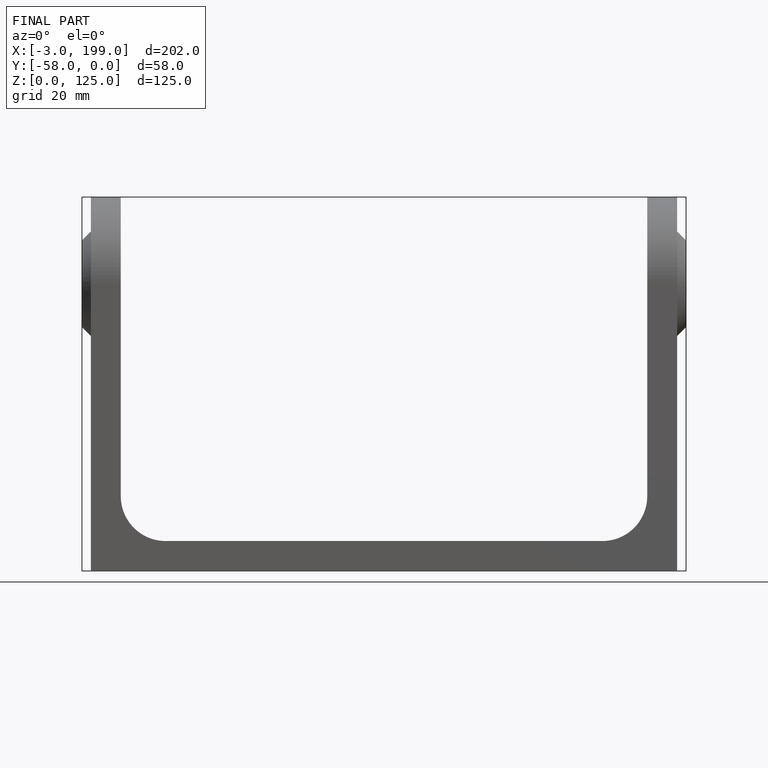
[diagram: finished part — front view with bounding-box wireframe]
